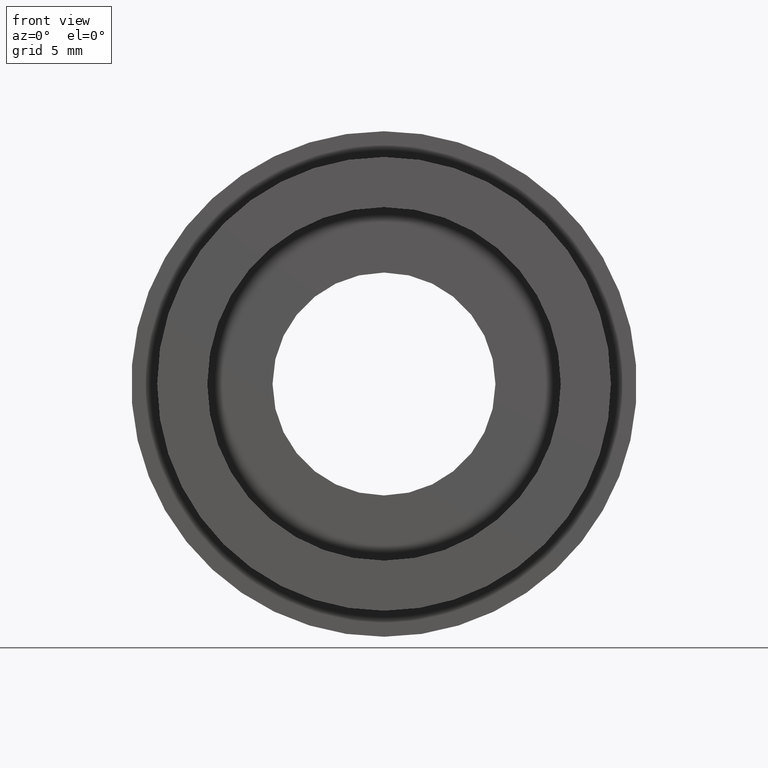
[diagram: clean part render]
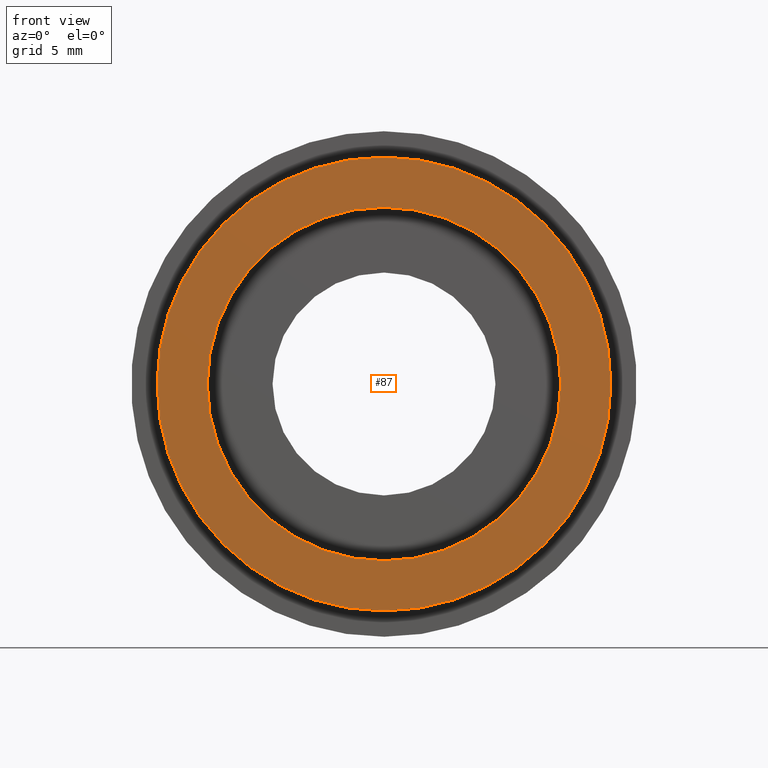
[diagram: same view with one face highlighted and labeled with its STEP entity id]
A machine part, front view. The second image highlights one B-rep face of the part: STEP entity #87.
In plain terms, the highlighted planar face has unit normal (-0, 1, 0).
Its self-contained STEP definition (entity closure, byte-faithful):
#13 = FACE_OUTER_BOUND ( 'NONE', #374, .T. ) ;
#16 = EDGE_LOOP ( 'NONE', ( #588, #386 ) ) ;
#33 = CIRCLE ( 'NONE', #337, 11.10000000000000100 ) ;
#38 = CARTESIAN_POINT ( 'NONE',  ( 11.10000000000000100, 0.0000000000000000000, 0.0000000000000000000 ) ) ;
#41 = DIRECTION ( 'NONE',  ( -0.0000000000000000000, 1.000000000000000000, 0.0000000000000000000 ) ) ;
#44 = EDGE_CURVE ( 'NONE', #581, #563, #112, .T. ) ;
#54 = FACE_BOUND ( 'NONE', #16, .T. ) ;
#63 = AXIS2_PLACEMENT_3D ( 'NONE', #227, #145, #408 ) ;
#87 = ADVANCED_FACE ( 'NONE', ( #13, #54 ), #350, .F. ) ;
#112 = CIRCLE ( 'NONE', #63, 14.25000000000000400 ) ;
#128 = EDGE_CURVE ( 'NONE', #469, #360, #33, .T. ) ;
#134 = CARTESIAN_POINT ( 'NONE',  ( 1.745121688784978600E-015, 0.0000000000000000000, -14.25000000000000400 ) ) ;
#145 = DIRECTION ( 'NONE',  ( -0.0000000000000000000, 1.000000000000000000, -0.0000000000000000000 ) ) ;
#220 = CARTESIAN_POINT ( 'NONE',  ( 0.0000000000000000000, 0.0000000000000000000, 14.25000000000000400 ) ) ;
#224 = DIRECTION ( 'NONE',  ( 0.0000000000000000000, 0.0000000000000000000, 1.000000000000000000 ) ) ;
#227 = CARTESIAN_POINT ( 'NONE',  ( 0.0000000000000000000, 0.0000000000000000000, 0.0000000000000000000 ) ) ;
#239 = EDGE_CURVE ( 'NONE', #563, #581, #540, .T. ) ;
#247 = CARTESIAN_POINT ( 'NONE',  ( 0.0000000000000000000, 0.0000000000000000000, 11.10000000000000100 ) ) ;
#280 = CARTESIAN_POINT ( 'NONE',  ( 1.359357947053562400E-015, 0.0000000000000000000, -11.10000000000000100 ) ) ;
#297 = CARTESIAN_POINT ( 'NONE',  ( 0.0000000000000000000, 0.0000000000000000000, 0.0000000000000000000 ) ) ;
#305 = DIRECTION ( 'NONE',  ( 0.0000000000000000000, 0.0000000000000000000, 1.000000000000000000 ) ) ;
#337 = AXIS2_PLACEMENT_3D ( 'NONE', #587, #575, #400 ) ;
#345 = DIRECTION ( 'NONE',  ( -0.0000000000000000000, 1.000000000000000000, -0.0000000000000000000 ) ) ;
#346 = CARTESIAN_POINT ( 'NONE',  ( 0.0000000000000000000, 0.0000000000000000000, 0.0000000000000000000 ) ) ;
#350 = PLANE ( 'NONE',  #381 ) ;
#360 = VERTEX_POINT ( 'NONE', #247 ) ;
#374 = EDGE_LOOP ( 'NONE', ( #523, #580 ) ) ;
#381 = AXIS2_PLACEMENT_3D ( 'NONE', #38, #41, #548 ) ;
#386 = ORIENTED_EDGE ( 'NONE', *, *, #128, .T. ) ;
#400 = DIRECTION ( 'NONE',  ( 0.0000000000000000000, 0.0000000000000000000, 1.000000000000000000 ) ) ;
#408 = DIRECTION ( 'NONE',  ( 0.0000000000000000000, 0.0000000000000000000, 1.000000000000000000 ) ) ;
#469 = VERTEX_POINT ( 'NONE', #280 ) ;
#494 = DIRECTION ( 'NONE',  ( -0.0000000000000000000, 1.000000000000000000, -0.0000000000000000000 ) ) ;
#510 = AXIS2_PLACEMENT_3D ( 'NONE', #297, #345, #224 ) ;
#523 = ORIENTED_EDGE ( 'NONE', *, *, #239, .F. ) ;
#540 = CIRCLE ( 'NONE', #586, 14.25000000000000400 ) ;
#548 = DIRECTION ( 'NONE',  ( 0.0000000000000000000, 0.0000000000000000000, 1.000000000000000000 ) ) ;
#563 = VERTEX_POINT ( 'NONE', #220 ) ;
#570 = CIRCLE ( 'NONE', #510, 11.10000000000000100 ) ;
#575 = DIRECTION ( 'NONE',  ( -0.0000000000000000000, 1.000000000000000000, -0.0000000000000000000 ) ) ;
#580 = ORIENTED_EDGE ( 'NONE', *, *, #44, .F. ) ;
#581 = VERTEX_POINT ( 'NONE', #134 ) ;
#586 = AXIS2_PLACEMENT_3D ( 'NONE', #346, #494, #305 ) ;
#587 = CARTESIAN_POINT ( 'NONE',  ( 0.0000000000000000000, 0.0000000000000000000, 0.0000000000000000000 ) ) ;
#588 = ORIENTED_EDGE ( 'NONE', *, *, #600, .T. ) ;
#600 = EDGE_CURVE ( 'NONE', #360, #469, #570, .T. ) ;